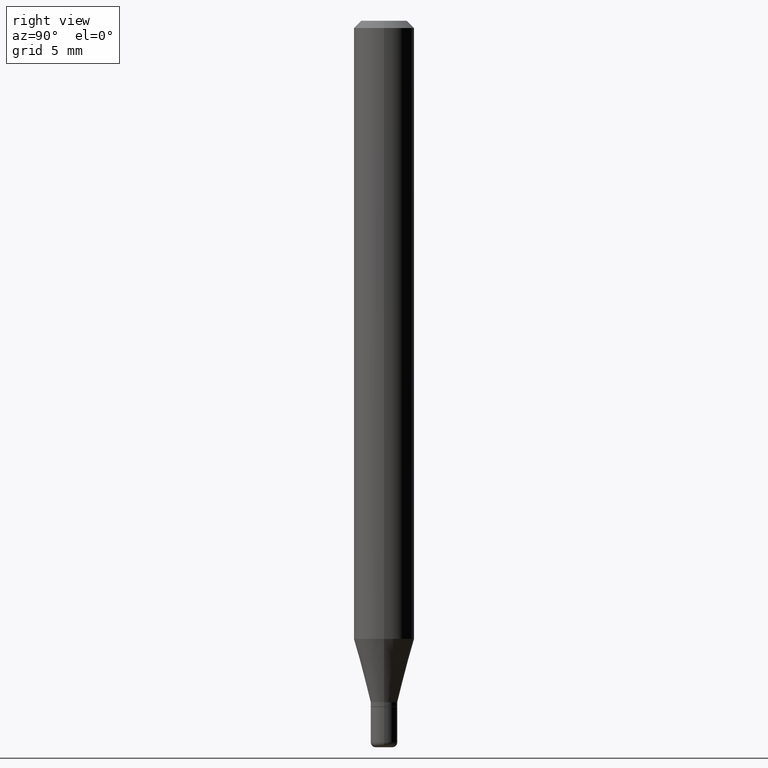
[diagram: clean part render]
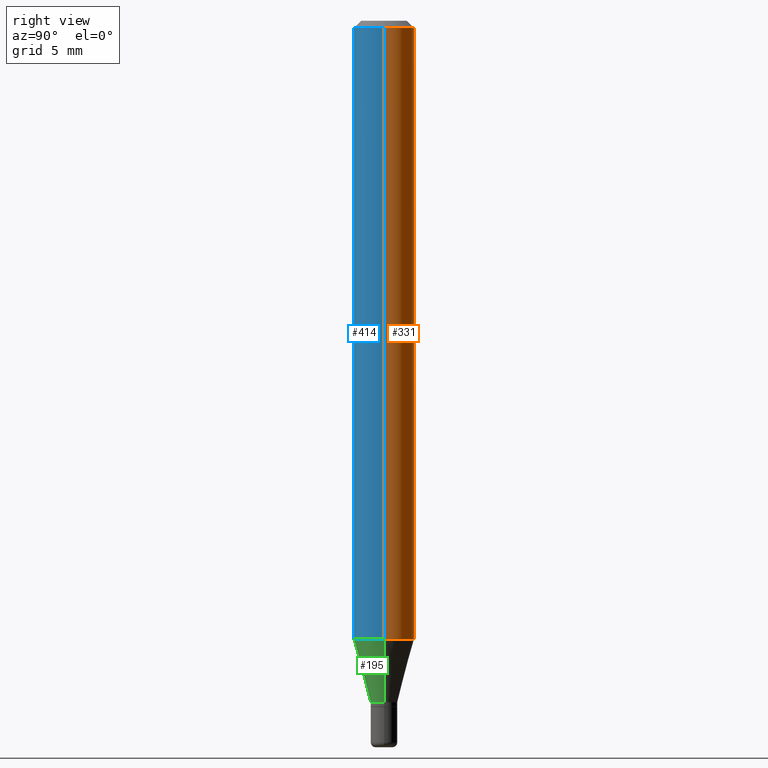
[diagram: same view with three faces highlighted in distinct colors, each labeled with its STEP entity id]
A machine part, right view with three faces highlighted in distinct colors.
Their STEP definitions:

[orange] entity #331 — the highlighted cylindrical surface (edge-blend (fillet) strip) has radius 1.5875 mm, axis along (-0, 0, 1).
#8 = EDGE_CURVE ( 'NONE', #343, #446, #265, .T. ) ;
#27 = CARTESIAN_POINT ( 'NONE',  ( -0.06250000000000000000, 4.440892098500626162E-16, -3.074334431409316114E-30 ) ) ;
#45 = CARTESIAN_POINT ( 'NONE',  ( 3.121343126147216343E-29, -4.456450742493863778E-15, -1.276378221735089191 ) ) ;
#60 = AXIS2_PLACEMENT_3D ( 'NONE', #273, #342, #488 ) ;
#75 = EDGE_CURVE ( 'NONE', #446, #338, #269, .T. ) ;
#80 = DIRECTION ( 'NONE',  ( -2.445468806185136597E-29, 3.491481338843145583E-15, 1.000000000000000000 ) ) ;
#92 = DIRECTION ( 'NONE',  ( -2.445468806185136877E-29, 3.491481338843145188E-15, 1.000000000000000000 ) ) ;
#96 = CARTESIAN_POINT ( 'NONE',  ( 0.06250000000000000000, -4.888073874380378612E-16, -0.01499999999999970281 ) ) ;
#110 = ORIENTED_EDGE ( 'NONE', *, *, #384, .F. ) ;
#132 = ORIENTED_EDGE ( 'NONE', *, *, #75, .T. ) ;
#134 = DIRECTION ( 'NONE',  ( -2.445468806185136597E-29, 3.491481338843145583E-15, 1.000000000000000000 ) ) ;
#139 = CARTESIAN_POINT ( 'NONE',  ( 0.000000000000000000, 0.000000000000000000, 0.000000000000000000 ) ) ;
#179 = CARTESIAN_POINT ( 'NONE',  ( -0.06250000000000000000, -4.012361532643799584E-15, -1.276378221735089191 ) ) ;
#242 = CARTESIAN_POINT ( 'NONE',  ( 0.06250000000000000000, -4.364351673553916694E-16, 3.047610484872459871E-30 ) ) ;
#257 = CIRCLE ( 'NONE', #60, 0.06250000000000000000 ) ;
#265 = CIRCLE ( 'NONE', #368, 0.06250000000000000000 ) ;
#268 = EDGE_CURVE ( 'NONE', #450, #338, #257, .T. ) ;
#269 = LINE ( 'NONE', #27, #335 ) ;
#273 = CARTESIAN_POINT ( 'NONE',  ( 3.668203209277632395E-31, -5.237222008264614861E-17, -0.01499999999999970281 ) ) ;
#280 = CARTESIAN_POINT ( 'NONE',  ( -0.06250000000000000000, -1.810322271438191826E-15, -0.01499999999999970281 ) ) ;
#294 = DIRECTION ( 'NONE',  ( 1.000000000000000000, -6.982962677686266711E-15, 4.876176775795935793E-29 ) ) ;
#331 = ADVANCED_FACE ( 'NONE', ( #486 ), #413, .T. ) ;
#335 = VECTOR ( 'NONE', #474, 39.37007874015748143 ) ;
#338 = VERTEX_POINT ( 'NONE', #280 ) ;
#339 = CARTESIAN_POINT ( 'NONE',  ( 0.06250000000000000000, -4.892885909849253869E-15, -1.276378221735089191 ) ) ;
#342 = DIRECTION ( 'NONE',  ( -2.445468806185136597E-29, 3.491481338843145583E-15, 1.000000000000000000 ) ) ;
#343 = VERTEX_POINT ( 'NONE', #339 ) ;
#360 = AXIS2_PLACEMENT_3D ( 'NONE', #139, #80, #294 ) ;
#365 = LINE ( 'NONE', #242, #466 ) ;
#368 = AXIS2_PLACEMENT_3D ( 'NONE', #45, #134, #371 ) ;
#371 = DIRECTION ( 'NONE',  ( 1.000000000000000000, -6.982962677686262766E-15, 0.000000000000000000 ) ) ;
#374 = ORIENTED_EDGE ( 'NONE', *, *, #8, .T. ) ;
#382 = EDGE_LOOP ( 'NONE', ( #374, #132, #424, #110 ) ) ;
#384 = EDGE_CURVE ( 'NONE', #343, #450, #365, .T. ) ;
#413 = CYLINDRICAL_SURFACE ( 'NONE', #360, 0.06250000000000000000 ) ;
#424 = ORIENTED_EDGE ( 'NONE', *, *, #268, .F. ) ;
#446 = VERTEX_POINT ( 'NONE', #179 ) ;
#450 = VERTEX_POINT ( 'NONE', #96 ) ;
#466 = VECTOR ( 'NONE', #92, 39.37007874015748143 ) ;
#474 = DIRECTION ( 'NONE',  ( -2.445468806185136877E-29, 3.491481338843145188E-15, 1.000000000000000000 ) ) ;
#486 = FACE_OUTER_BOUND ( 'NONE', #382, .T. ) ;
#488 = DIRECTION ( 'NONE',  ( 1.000000000000000000, -6.982962677686266711E-15, 0.000000000000000000 ) ) ;

[blue] entity #414 — the highlighted cylindrical surface (edge-blend (fillet) strip) has radius 1.5875 mm, axis along (-0, 0, 1).
#14 = ORIENTED_EDGE ( 'NONE', *, *, #75, .F. ) ;
#27 = CARTESIAN_POINT ( 'NONE',  ( -0.06250000000000000000, 4.440892098500626162E-16, -3.074334431409316114E-30 ) ) ;
#37 = DIRECTION ( 'NONE',  ( -2.445468806185136597E-29, 3.491481338843145583E-15, 1.000000000000000000 ) ) ;
#39 = ORIENTED_EDGE ( 'NONE', *, *, #384, .T. ) ;
#50 = CYLINDRICAL_SURFACE ( 'NONE', #345, 0.06250000000000000000 ) ;
#75 = EDGE_CURVE ( 'NONE', #446, #338, #269, .T. ) ;
#85 = ORIENTED_EDGE ( 'NONE', *, *, #320, .F. ) ;
#92 = DIRECTION ( 'NONE',  ( -2.445468806185136877E-29, 3.491481338843145188E-15, 1.000000000000000000 ) ) ;
#96 = CARTESIAN_POINT ( 'NONE',  ( 0.06250000000000000000, -4.888073874380378612E-16, -0.01499999999999970281 ) ) ;
#129 = EDGE_LOOP ( 'NONE', ( #14, #491, #39, #85 ) ) ;
#166 = FACE_OUTER_BOUND ( 'NONE', #129, .T. ) ;
#176 = AXIS2_PLACEMENT_3D ( 'NONE', #251, #337, #449 ) ;
#179 = CARTESIAN_POINT ( 'NONE',  ( -0.06250000000000000000, -4.012361532643799584E-15, -1.276378221735089191 ) ) ;
#190 = CARTESIAN_POINT ( 'NONE',  ( 3.121343126147216343E-29, -4.456450742493863778E-15, -1.276378221735089191 ) ) ;
#215 = CARTESIAN_POINT ( 'NONE',  ( 0.000000000000000000, 0.000000000000000000, 0.000000000000000000 ) ) ;
#228 = DIRECTION ( 'NONE',  ( -2.445468806185136597E-29, 3.491481338843145583E-15, 1.000000000000000000 ) ) ;
#242 = CARTESIAN_POINT ( 'NONE',  ( 0.06250000000000000000, -4.364351673553916694E-16, 3.047610484872459871E-30 ) ) ;
#251 = CARTESIAN_POINT ( 'NONE',  ( 3.668203209277632395E-31, -5.237222008264614861E-17, -0.01499999999999970281 ) ) ;
#269 = LINE ( 'NONE', #27, #335 ) ;
#280 = CARTESIAN_POINT ( 'NONE',  ( -0.06250000000000000000, -1.810322271438191826E-15, -0.01499999999999970281 ) ) ;
#289 = CIRCLE ( 'NONE', #506, 0.06250000000000000000 ) ;
#320 = EDGE_CURVE ( 'NONE', #338, #450, #518, .T. ) ;
#335 = VECTOR ( 'NONE', #474, 39.37007874015748143 ) ;
#337 = DIRECTION ( 'NONE',  ( -2.445468806185136597E-29, 3.491481338843145583E-15, 1.000000000000000000 ) ) ;
#338 = VERTEX_POINT ( 'NONE', #280 ) ;
#339 = CARTESIAN_POINT ( 'NONE',  ( 0.06250000000000000000, -4.892885909849253869E-15, -1.276378221735089191 ) ) ;
#343 = VERTEX_POINT ( 'NONE', #339 ) ;
#345 = AXIS2_PLACEMENT_3D ( 'NONE', #215, #37, #409 ) ;
#365 = LINE ( 'NONE', #242, #466 ) ;
#384 = EDGE_CURVE ( 'NONE', #343, #450, #365, .T. ) ;
#409 = DIRECTION ( 'NONE',  ( 1.000000000000000000, -6.982962677686266711E-15, 4.876176775795935793E-29 ) ) ;
#414 = ADVANCED_FACE ( 'NONE', ( #166 ), #50, .T. ) ;
#446 = VERTEX_POINT ( 'NONE', #179 ) ;
#449 = DIRECTION ( 'NONE',  ( 1.000000000000000000, -6.982962677686266711E-15, 0.000000000000000000 ) ) ;
#450 = VERTEX_POINT ( 'NONE', #96 ) ;
#466 = VECTOR ( 'NONE', #92, 39.37007874015748143 ) ;
#474 = DIRECTION ( 'NONE',  ( -2.445468806185136877E-29, 3.491481338843145188E-15, 1.000000000000000000 ) ) ;
#477 = EDGE_CURVE ( 'NONE', #446, #343, #289, .T. ) ;
#491 = ORIENTED_EDGE ( 'NONE', *, *, #477, .T. ) ;
#497 = DIRECTION ( 'NONE',  ( 1.000000000000000000, -6.982962677686262766E-15, 0.000000000000000000 ) ) ;
#506 = AXIS2_PLACEMENT_3D ( 'NONE', #190, #228, #497 ) ;
#518 = CIRCLE ( 'NONE', #176, 0.06250000000000000000 ) ;

[green] entity #195 — the highlighted conical surface has half-angle 15 deg.
#16 = CARTESIAN_POINT ( 'NONE',  ( 0.02749999999999997932, -5.104545717388677595E-15, -1.407000000000000028 ) ) ;
#25 = DIRECTION ( 'NONE',  ( 0.2588190451025207950, 1.565188264969625912E-15, 0.9659258262890682012 ) ) ;
#36 = ORIENTED_EDGE ( 'NONE', *, *, #477, .F. ) ;
#38 = CARTESIAN_POINT ( 'NONE',  ( 3.440774610302487541E-29, -4.912514243752305891E-15, -1.407000000000000028 ) ) ;
#42 = FACE_OUTER_BOUND ( 'NONE', #150, .T. ) ;
#86 = CARTESIAN_POINT ( 'NONE',  ( 0.02749999999999997932, -5.104545717388677595E-15, -1.407000000000000028 ) ) ;
#99 = DIRECTION ( 'NONE',  ( -0.2588190451025207950, 5.211531920934546309E-15, 0.9659258262890682012 ) ) ;
#150 = EDGE_LOOP ( 'NONE', ( #444, #455, #304, #36 ) ) ;
#167 = EDGE_CURVE ( 'NONE', #300, #319, #367, .T. ) ;
#179 = CARTESIAN_POINT ( 'NONE',  ( -0.06250000000000000000, -4.012361532643799584E-15, -1.276378221735089191 ) ) ;
#180 = DIRECTION ( 'NONE',  ( 1.000000000000000000, -6.982962677686250144E-15, 0.000000000000000000 ) ) ;
#190 = CARTESIAN_POINT ( 'NONE',  ( 3.121343126147216343E-29, -4.456450742493863778E-15, -1.276378221735089191 ) ) ;
#195 = ADVANCED_FACE ( 'NONE', ( #42 ), #397, .T. ) ;
#200 = AXIS2_PLACEMENT_3D ( 'NONE', #244, #405, #212 ) ;
#205 = EDGE_CURVE ( 'NONE', #319, #343, #427, .T. ) ;
#212 = DIRECTION ( 'NONE',  ( 1.000000000000000000, -6.982962677686250144E-15, 0.000000000000000000 ) ) ;
#217 = CARTESIAN_POINT ( 'NONE',  ( -0.02749999999999997932, -4.364738262031038678E-15, -1.407000000000000028 ) ) ;
#226 = AXIS2_PLACEMENT_3D ( 'NONE', #38, #243, #180 ) ;
#228 = DIRECTION ( 'NONE',  ( -2.445468806185136597E-29, 3.491481338843145583E-15, 1.000000000000000000 ) ) ;
#243 = DIRECTION ( 'NONE',  ( -2.445468806185136597E-29, 3.491481338843145583E-15, 1.000000000000000000 ) ) ;
#244 = CARTESIAN_POINT ( 'NONE',  ( 3.440774610302487541E-29, -4.912514243752305891E-15, -1.407000000000000028 ) ) ;
#289 = CIRCLE ( 'NONE', #506, 0.06250000000000000000 ) ;
#298 = CARTESIAN_POINT ( 'NONE',  ( -0.02749999999999997932, -4.717114991418277772E-15, -1.407000000000000028 ) ) ;
#300 = VERTEX_POINT ( 'NONE', #217 ) ;
#304 = ORIENTED_EDGE ( 'NONE', *, *, #205, .T. ) ;
#315 = VECTOR ( 'NONE', #25, 39.37007874015748854 ) ;
#319 = VERTEX_POINT ( 'NONE', #86 ) ;
#339 = CARTESIAN_POINT ( 'NONE',  ( 0.06250000000000000000, -4.892885909849253869E-15, -1.276378221735089191 ) ) ;
#343 = VERTEX_POINT ( 'NONE', #339 ) ;
#353 = VECTOR ( 'NONE', #99, 39.37007874015748854 ) ;
#367 = CIRCLE ( 'NONE', #226, 0.02749999999999997932 ) ;
#397 = CONICAL_SURFACE ( 'NONE', #200, 0.02749999999999997932, 0.2617993877991495189 ) ;
#405 = DIRECTION ( 'NONE',  ( -2.445468806185136597E-29, 3.491481338843145583E-15, 1.000000000000000000 ) ) ;
#427 = LINE ( 'NONE', #16, #315 ) ;
#444 = ORIENTED_EDGE ( 'NONE', *, *, #461, .F. ) ;
#446 = VERTEX_POINT ( 'NONE', #179 ) ;
#455 = ORIENTED_EDGE ( 'NONE', *, *, #167, .T. ) ;
#461 = EDGE_CURVE ( 'NONE', #300, #446, #500, .T. ) ;
#477 = EDGE_CURVE ( 'NONE', #446, #343, #289, .T. ) ;
#497 = DIRECTION ( 'NONE',  ( 1.000000000000000000, -6.982962677686262766E-15, 0.000000000000000000 ) ) ;
#500 = LINE ( 'NONE', #298, #353 ) ;
#506 = AXIS2_PLACEMENT_3D ( 'NONE', #190, #228, #497 ) ;